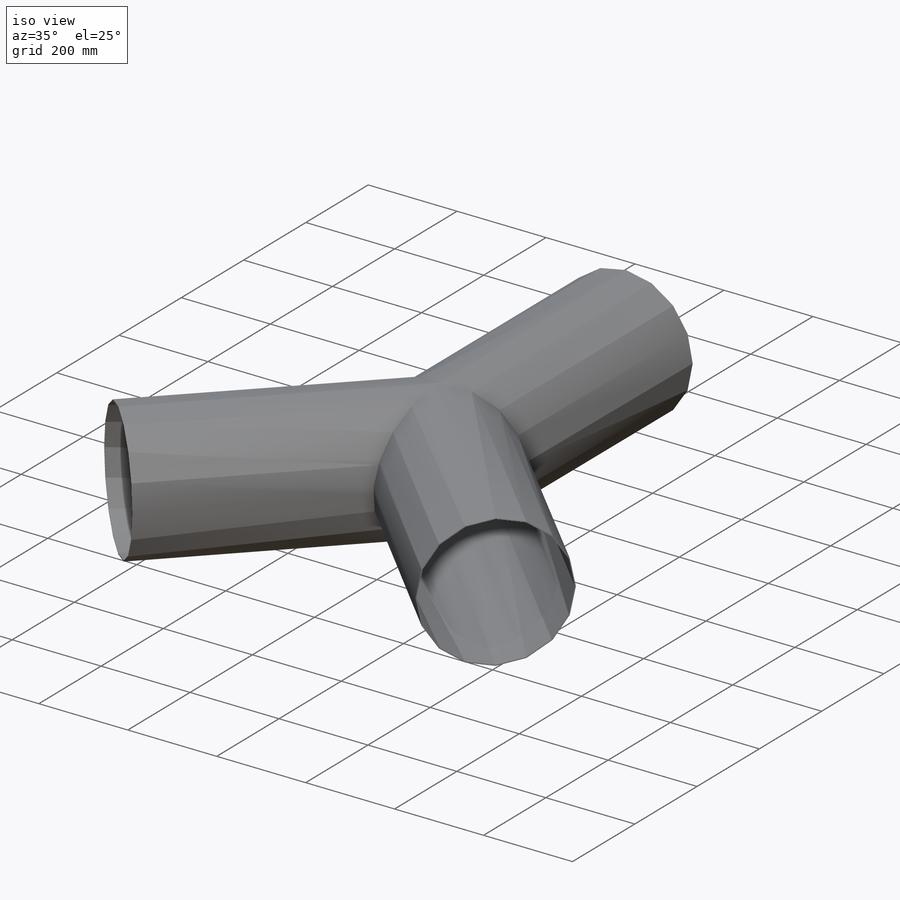
[diagram: iso view]
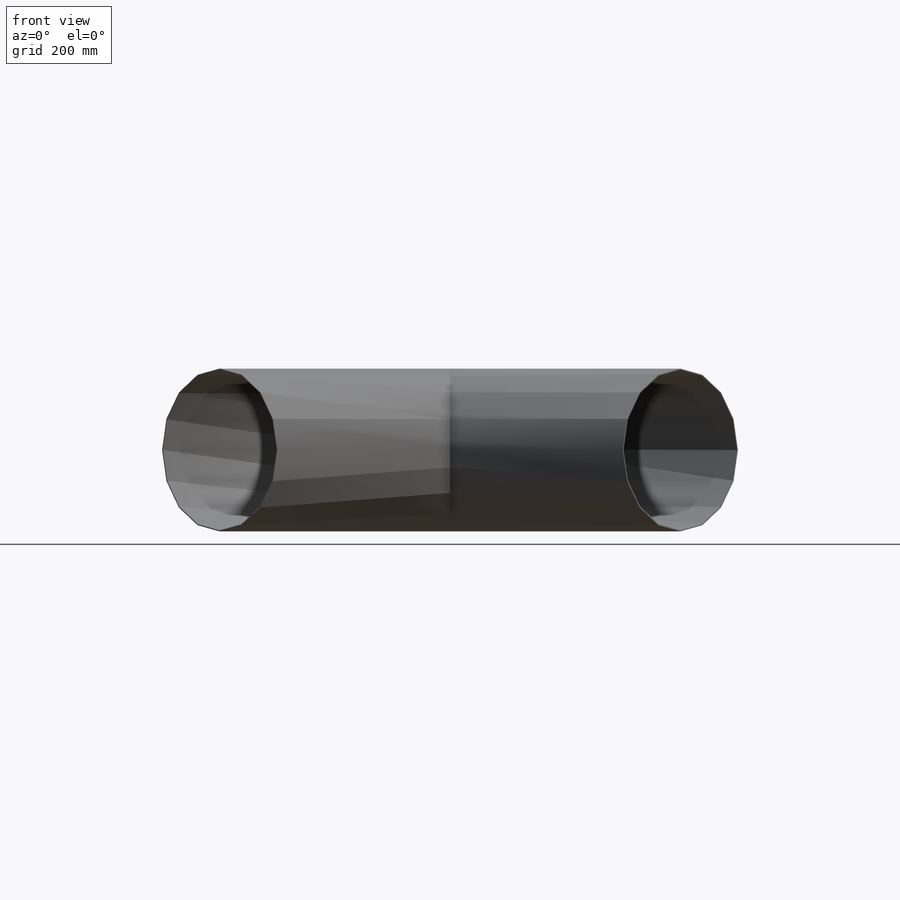
[diagram: front view]
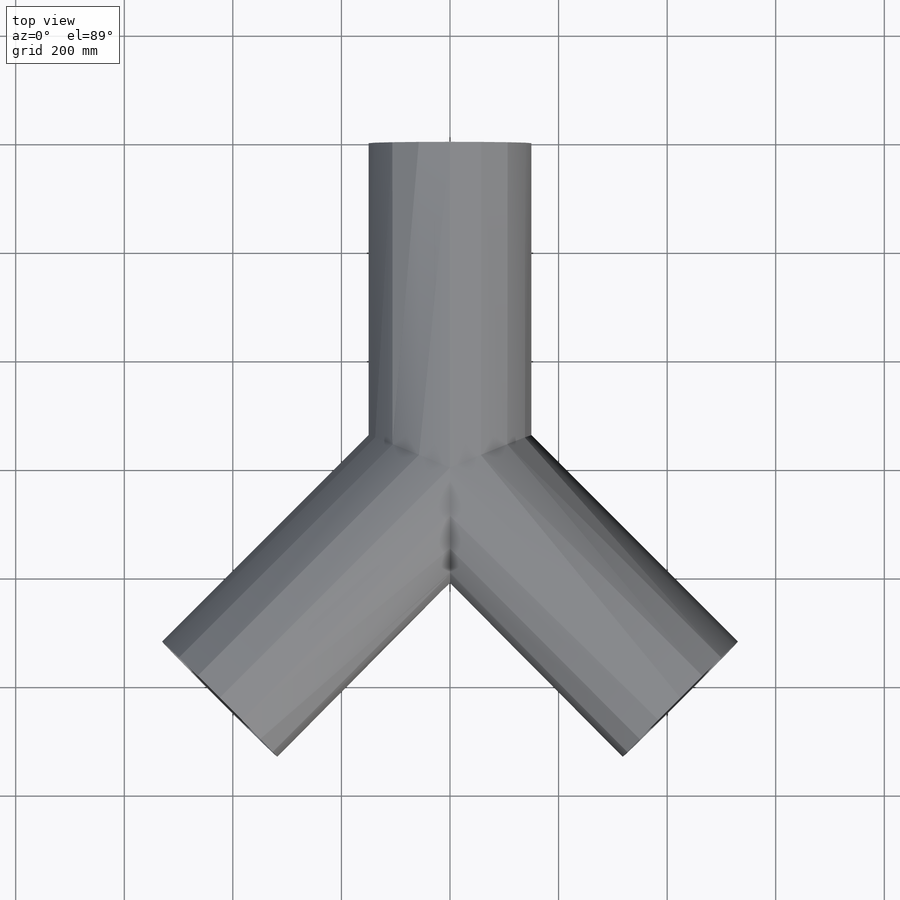
[diagram: top view]
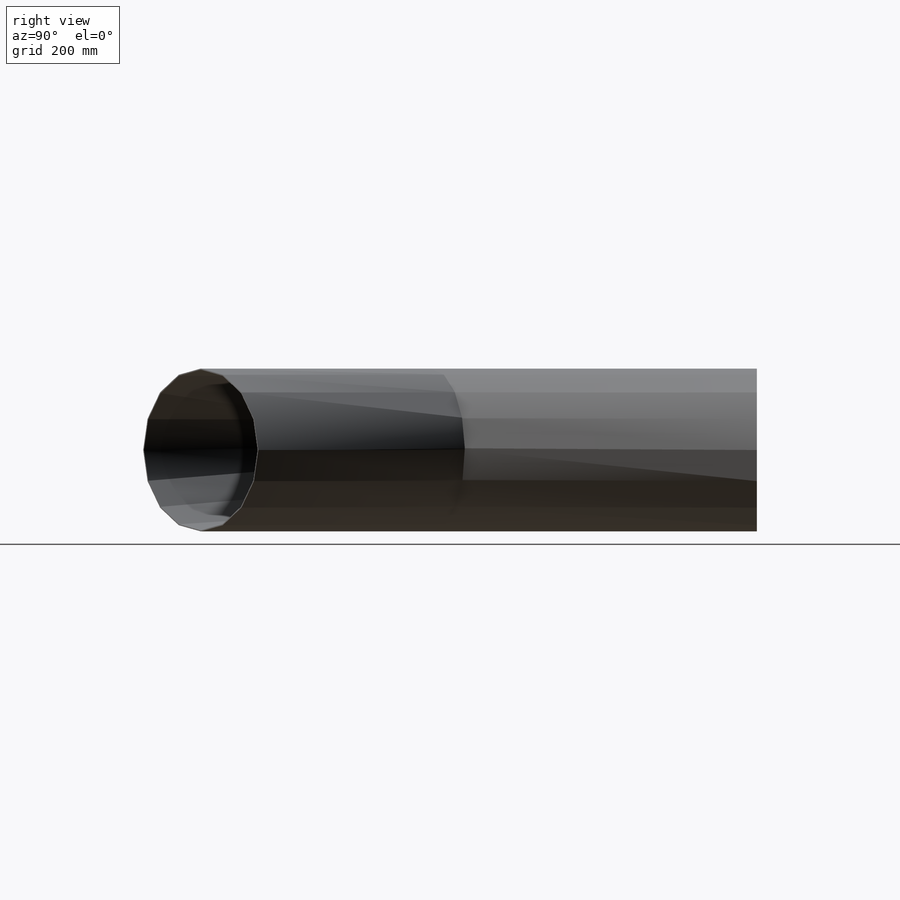
[diagram: right view]
SOLIDWORKS PART (.sldprt)
format: sldprt  version: not decoded by parser v0  size: 174,080 bytes
history: native  units: mm
features: plane x6, sketch x4, extrude x4, material x1, shell x1 (+7 scaffold rows collapsed)
feature tree (23):
  scaffold x7  (default folders/planes/origin — collapsed)
  material  "Material <nicht festgelegt>"
  plane  "Ebene vorne"
  plane  "Ebene oben"
  plane  "Ebene rechts"
  sketch  "Skizze1"  dims[c1.D1=~38.738958mm c2.D1=90.0deg c2.D2=34.8939mm c3.D2=45.0deg c3.D3=600.0mm]
  plane  "Ebene4"
  plane  "Ebene5"
  plane  "Ebene6"
  sketch  "Skizze2"  dims[D1=300.0mm]
  sketch  "Skizze3"  dims[D1=300.0mm]
  sketch  "Skizze4"  dims[D1=300.0mm]
  extrude  "Aufsatz-Linear austragen1"  Depth=600mm
  extrude  "Aufsatz-Linear austragen2"  [1 undecoded]
  extrude  "Aufsatz-Linear austragen3"  [1 undecoded]
  extrude  "Fläche löschen2"  [1 undecoded]
  shell  "Wandung1"  Thickness=2mm
decode coverage: 6 of 9 modeling features carry decoded parameters
note: ~ marks probable driven/reference dimensions
note: 3 parameter values undecoded
summary: no parameter record found for 3 features
note: suppression state not decoded; provenance and decode notes live in map.json
